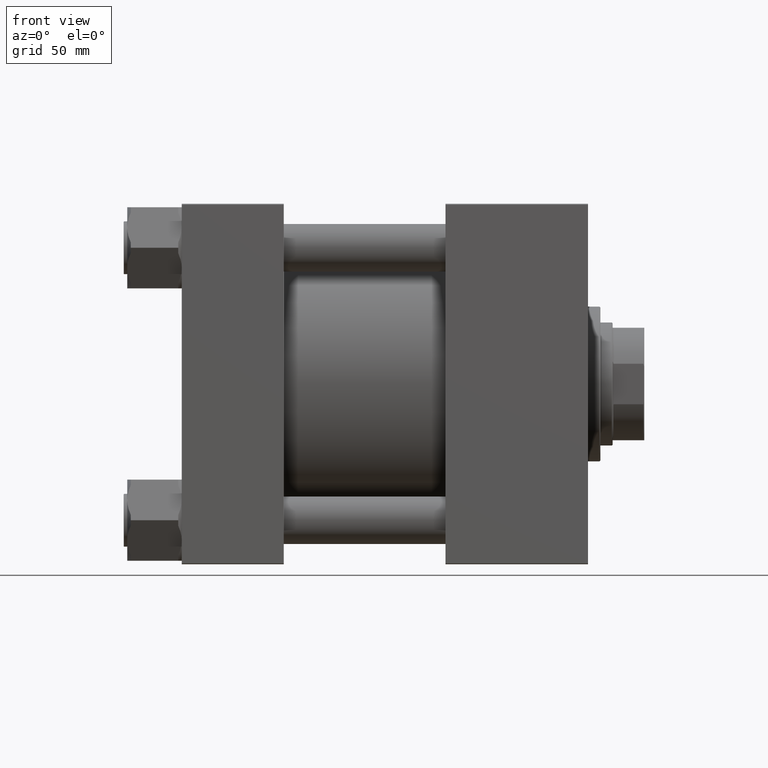
[diagram: clean part render]
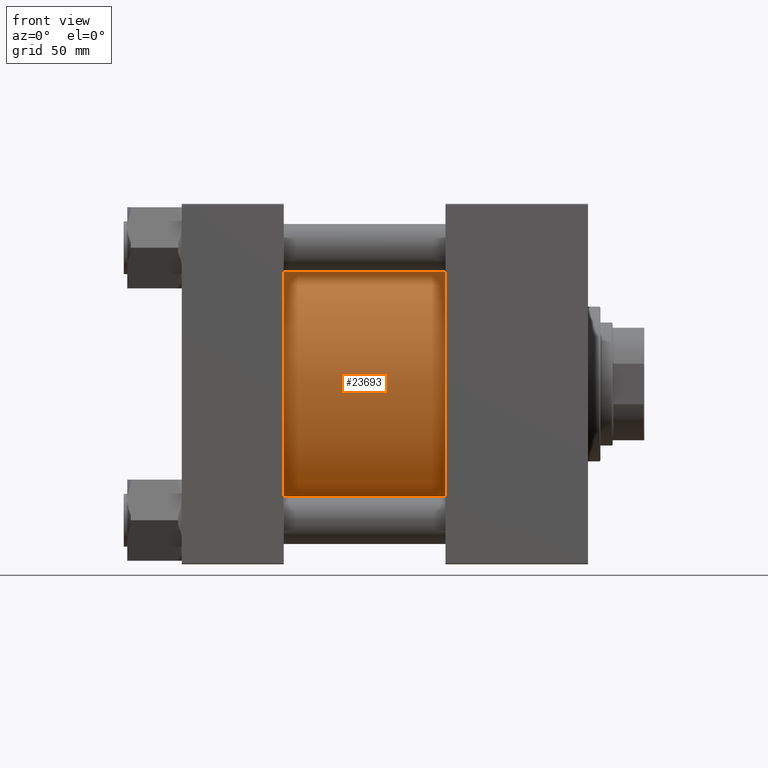
[diagram: same view with one face highlighted and labeled with its STEP entity id]
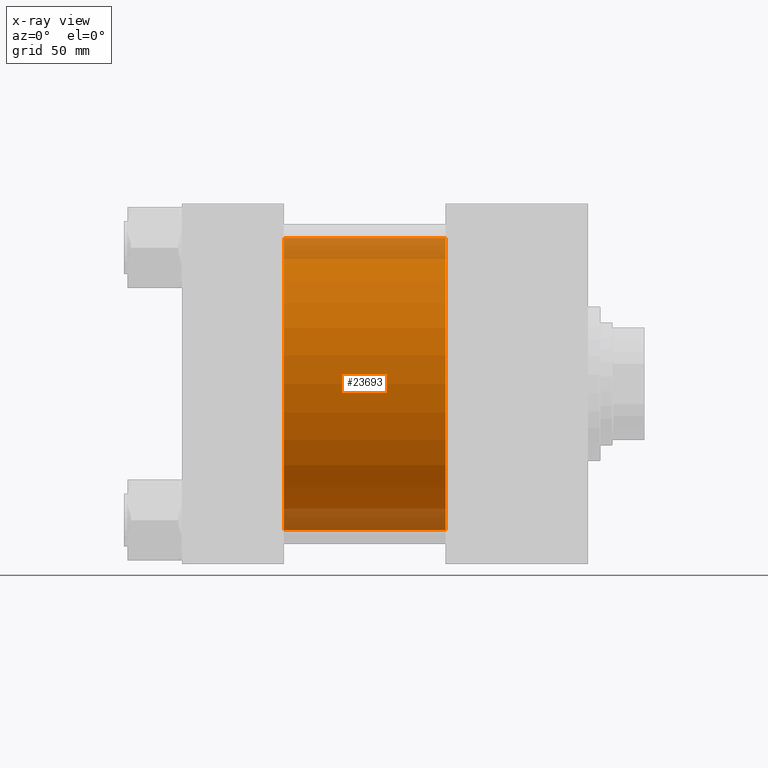
[diagram: x-ray of the same camera — body ghosted, the highlighted face saturated]
A machine part, front view. The second image highlights one B-rep face of the part: STEP entity #23693.
The next image is the same camera in x-ray: the body ghosted, the highlighted face saturated — about 15% of this face is hidden behind the body in this view.
In plain terms, the highlighted cylindrical surface (partial cylindrical patch) has radius 83 mm, axis along (-1, -0, -0).
Its self-contained STEP definition (entity closure, byte-faithful):
#3480 = EDGE_CURVE ( 'NONE', #21008, #43451, #38506, .T. ) ;
#4060 = ORIENTED_EDGE ( 'NONE', *, *, #22712, .F. ) ;
#8613 = ORIENTED_EDGE ( 'NONE', *, *, #3480, .F. ) ;
#10147 = CARTESIAN_POINT ( 'NONE',  ( 150.0000000000000000, -2.602085213965210642E-15, 83.00000000000000000 ) ) ;
#11139 = ORIENTED_EDGE ( 'NONE', *, *, #29745, .T. ) ;
#11331 = DIRECTION ( 'NONE',  ( 0.000000000000000000, 0.000000000000000000, -1.000000000000000000 ) ) ;
#11374 = VECTOR ( 'NONE', #26289, 1000.000000000000000 ) ;
#11469 = EDGE_LOOP ( 'NONE', ( #8613, #4060, #22485, #11139 ) ) ;
#11620 = CARTESIAN_POINT ( 'NONE',  ( 57.99999999999999289, 7.562483218957820855E-15, -83.00000000000000000 ) ) ;
#14461 = DIRECTION ( 'NONE',  ( 1.000000000000000000, -0.000000000000000000, 0.000000000000000000 ) ) ;
#14582 = CARTESIAN_POINT ( 'NONE',  ( 150.0000000000000000, 7.562483218957820855E-15, -83.00000000000000000 ) ) ;
#14612 = VERTEX_POINT ( 'NONE', #21226 ) ;
#16386 = CIRCLE ( 'NONE', #47521, 83.00000000000000000 ) ;
#17263 = AXIS2_PLACEMENT_3D ( 'NONE', #24406, #40057, #20565 ) ;
#19439 = EDGE_CURVE ( 'NONE', #46335, #14612, #45789, .T. ) ;
#20565 = DIRECTION ( 'NONE',  ( 0.000000000000000000, 0.000000000000000000, 1.000000000000000000 ) ) ;
#21008 = VERTEX_POINT ( 'NONE', #14582 ) ;
#21226 = CARTESIAN_POINT ( 'NONE',  ( 57.99999999999999289, -2.602085213965210642E-15, 83.00000000000000000 ) ) ;
#22485 = ORIENTED_EDGE ( 'NONE', *, *, #19439, .T. ) ;
#22712 = EDGE_CURVE ( 'NONE', #46335, #21008, #16386, .T. ) ;
#23197 = AXIS2_PLACEMENT_3D ( 'NONE', #45999, #14461, #29349 ) ;
#23693 = ADVANCED_FACE ( 'NONE', ( #28259 ), #43908, .T. ) ;
#24406 = CARTESIAN_POINT ( 'NONE',  ( 150.0000000000000000, -2.602085213965210642E-15, 0.000000000000000000 ) ) ;
#25083 = VECTOR ( 'NONE', #37764, 1000.000000000000000 ) ;
#26289 = DIRECTION ( 'NONE',  ( -1.000000000000000000, -0.000000000000000000, -0.000000000000000000 ) ) ;
#28259 = FACE_OUTER_BOUND ( 'NONE', #11469, .T. ) ;
#29349 = DIRECTION ( 'NONE',  ( 0.000000000000000000, 0.000000000000000000, 1.000000000000000000 ) ) ;
#29745 = EDGE_CURVE ( 'NONE', #14612, #43451, #42040, .T. ) ;
#37764 = DIRECTION ( 'NONE',  ( -1.000000000000000000, -0.000000000000000000, -0.000000000000000000 ) ) ;
#37941 = CARTESIAN_POINT ( 'NONE',  ( 150.0000000000000000, -2.602085213965210642E-15, 83.00000000000000000 ) ) ;
#38506 = LINE ( 'NONE', #41864, #25083 ) ;
#40057 = DIRECTION ( 'NONE',  ( -1.000000000000000000, -0.000000000000000000, -0.000000000000000000 ) ) ;
#41864 = CARTESIAN_POINT ( 'NONE',  ( 150.0000000000000000, 7.562483218957820855E-15, -83.00000000000000000 ) ) ;
#42040 = CIRCLE ( 'NONE', #23197, 83.00000000000000000 ) ;
#43451 = VERTEX_POINT ( 'NONE', #11620 ) ;
#43908 = CYLINDRICAL_SURFACE ( 'NONE', #17263, 83.00000000000000000 ) ;
#45789 = LINE ( 'NONE', #10147, #11374 ) ;
#45999 = CARTESIAN_POINT ( 'NONE',  ( 57.99999999999999289, -2.602085213965210642E-15, 0.000000000000000000 ) ) ;
#46335 = VERTEX_POINT ( 'NONE', #37941 ) ;
#46473 = CARTESIAN_POINT ( 'NONE',  ( 150.0000000000000000, -2.602085213965210642E-15, 0.000000000000000000 ) ) ;
#47521 = AXIS2_PLACEMENT_3D ( 'NONE', #46473, #50572, #11331 ) ;
#50572 = DIRECTION ( 'NONE',  ( 1.000000000000000000, 0.000000000000000000, 0.000000000000000000 ) ) ;